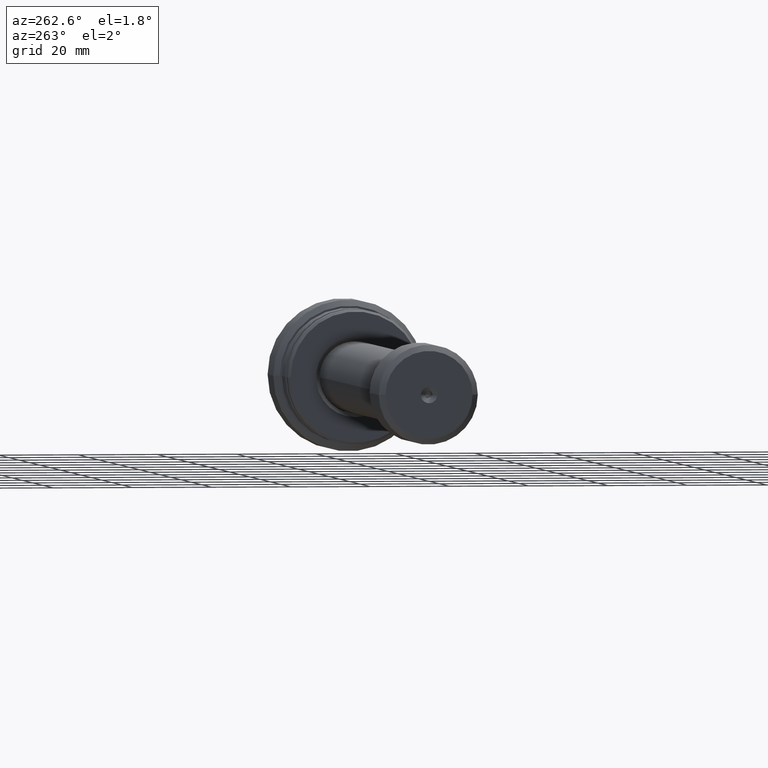
[diagram: clean part render]
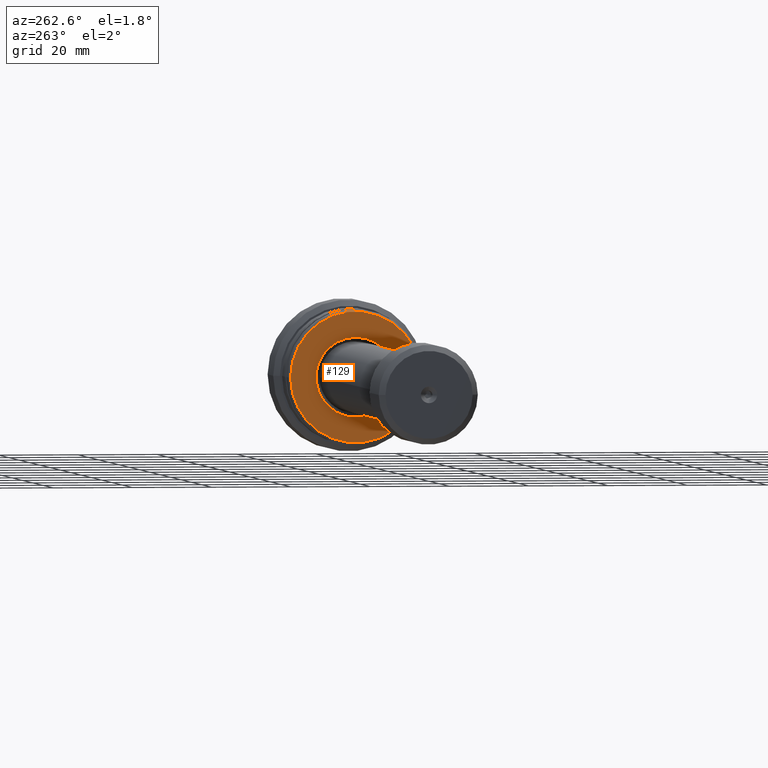
[diagram: same view with one face highlighted and labeled with its STEP entity id]
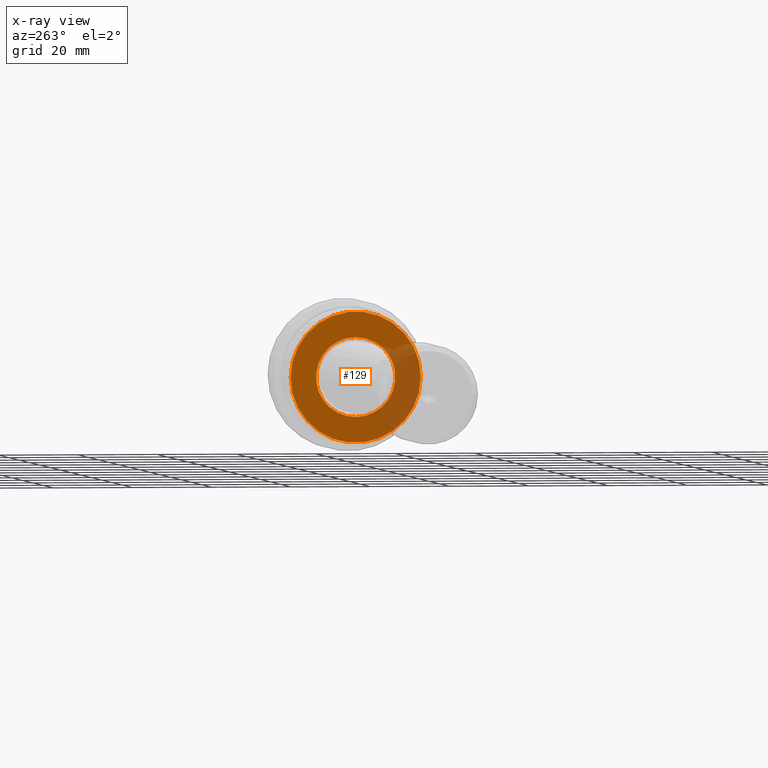
[diagram: x-ray of the same camera — body ghosted, the highlighted face saturated]
A machine part, auxiliary view. The second image highlights one B-rep face of the part: STEP entity #129.
The next image is the same camera in x-ray: the body ghosted, the highlighted face saturated — about 27% of this face is hidden behind the body in this view.
In plain terms, the highlighted planar face has unit normal (-1, 0, 0).
Its self-contained STEP definition (entity closure, byte-faithful):
#44 = VERTEX_POINT ( 'NONE', #1145 ) ;
#49 = CARTESIAN_POINT ( 'NONE',  ( -26.49999999999998934, 1.224646799147347143E-15, -9.999999999999952038 ) ) ;
#112 = DIRECTION ( 'NONE',  ( -1.000000000000000000, 9.810081908519753690E-16, -0.000000000000000000 ) ) ;
#129 = ADVANCED_FACE ( 'NONE', ( #1183, #427 ), #1355, .T. ) ;
#133 = VERTEX_POINT ( 'NONE', #2111 ) ;
#159 = AXIS2_PLACEMENT_3D ( 'NONE', #2192, #112, #307 ) ;
#267 = DIRECTION ( 'NONE',  ( 1.000000000000000000, -9.810081908519753690E-16, 0.000000000000000000 ) ) ;
#281 = CARTESIAN_POINT ( 'NONE',  ( -26.49999999999998934, 0.000000000000000000, 0.000000000000000000 ) ) ;
#307 = DIRECTION ( 'NONE',  ( -1.056299381897123643E-15, -1.000000000000000000, 0.000000000000000000 ) ) ;
#427 = FACE_OUTER_BOUND ( 'NONE', #712, .T. ) ;
#431 = EDGE_CURVE ( 'NONE', #44, #133, #1442, .T. ) ;
#465 = DIRECTION ( 'NONE',  ( -1.040834085586088201E-15, -1.000000000000000000, 0.000000000000000000 ) ) ;
#518 = CIRCLE ( 'NONE', #159, 16.42264973081047685 ) ;
#639 = AXIS2_PLACEMENT_3D ( 'NONE', #1551, #1165, #1716 ) ;
#712 = EDGE_LOOP ( 'NONE', ( #1918, #1623 ) ) ;
#805 = DIRECTION ( 'NONE',  ( -9.810081908519753690E-16, -1.000000000000000000, 0.000000000000000000 ) ) ;
#857 = CIRCLE ( 'NONE', #2183, 9.999999999999962697 ) ;
#1098 = CARTESIAN_POINT ( 'NONE',  ( -26.49999999999998934, 0.000000000000000000, 9.999999999999952038 ) ) ;
#1145 = CARTESIAN_POINT ( 'NONE',  ( -26.49999999999996092, 16.42264973081047330, 0.000000000000000000 ) ) ;
#1165 = DIRECTION ( 'NONE',  ( -1.000000000000000000, 9.810081908519753690E-16, -0.000000000000000000 ) ) ;
#1183 = FACE_BOUND ( 'NONE', #2152, .T. ) ;
#1355 = PLANE ( 'NONE',  #1403 ) ;
#1403 = AXIS2_PLACEMENT_3D ( 'NONE', #2124, #1558, #805 ) ;
#1442 = CIRCLE ( 'NONE', #639, 16.42264973081047685 ) ;
#1485 = CIRCLE ( 'NONE', #2378, 9.999999999999962697 ) ;
#1538 = CARTESIAN_POINT ( 'NONE',  ( -26.49999999999998934, 0.000000000000000000, 0.000000000000000000 ) ) ;
#1551 = CARTESIAN_POINT ( 'NONE',  ( -26.49999999999997868, -3.708233295962672312E-15, 0.000000000000000000 ) ) ;
#1558 = DIRECTION ( 'NONE',  ( -1.000000000000000000, 9.810081908519753690E-16, 0.000000000000000000 ) ) ;
#1583 = EDGE_CURVE ( 'NONE', #1860, #2392, #857, .T. ) ;
#1623 = ORIENTED_EDGE ( 'NONE', *, *, #2234, .T. ) ;
#1716 = DIRECTION ( 'NONE',  ( -1.056299381897123643E-15, -1.000000000000000000, 0.000000000000000000 ) ) ;
#1805 = EDGE_CURVE ( 'NONE', #2392, #1860, #1485, .T. ) ;
#1860 = VERTEX_POINT ( 'NONE', #1098 ) ;
#1918 = ORIENTED_EDGE ( 'NONE', *, *, #431, .T. ) ;
#1926 = DIRECTION ( 'NONE',  ( 1.000000000000000000, -9.810081908519753690E-16, 0.000000000000000000 ) ) ;
#1958 = ORIENTED_EDGE ( 'NONE', *, *, #1583, .T. ) ;
#2111 = CARTESIAN_POINT ( 'NONE',  ( -26.49999999999999645, -16.42264973081048041, 2.046547050593009849E-15 ) ) ;
#2124 = CARTESIAN_POINT ( 'NONE',  ( -26.49999999999998934, -3.708233295962664424E-15, 0.000000000000000000 ) ) ;
#2152 = EDGE_LOOP ( 'NONE', ( #1958, #2370 ) ) ;
#2183 = AXIS2_PLACEMENT_3D ( 'NONE', #1538, #267, #2316 ) ;
#2192 = CARTESIAN_POINT ( 'NONE',  ( -26.49999999999997868, -3.708233295962672312E-15, 0.000000000000000000 ) ) ;
#2234 = EDGE_CURVE ( 'NONE', #133, #44, #518, .T. ) ;
#2316 = DIRECTION ( 'NONE',  ( -1.040834085586088201E-15, -1.000000000000000000, 0.000000000000000000 ) ) ;
#2370 = ORIENTED_EDGE ( 'NONE', *, *, #1805, .T. ) ;
#2378 = AXIS2_PLACEMENT_3D ( 'NONE', #281, #1926, #465 ) ;
#2392 = VERTEX_POINT ( 'NONE', #49 ) ;